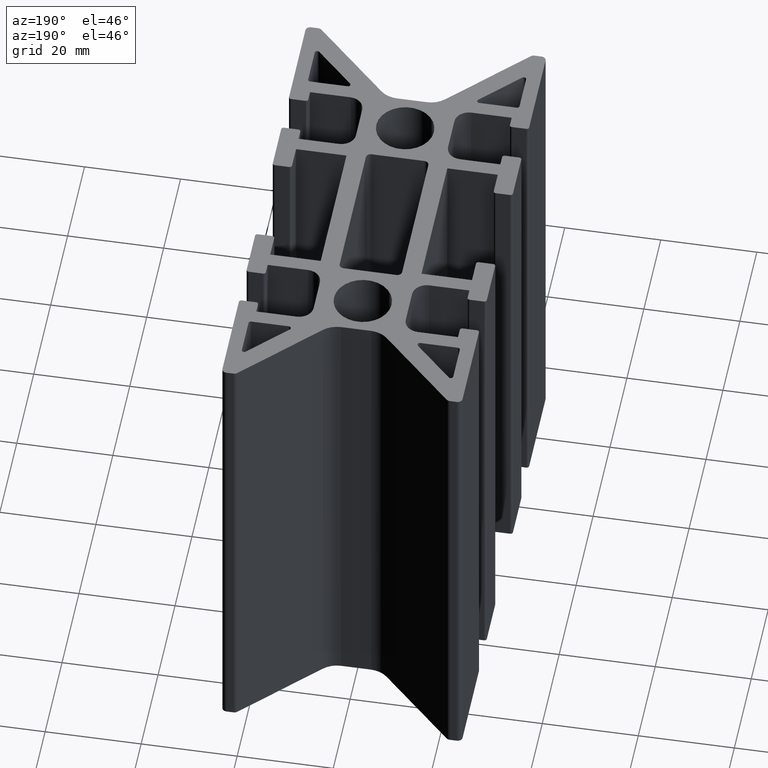
[diagram: clean part render]
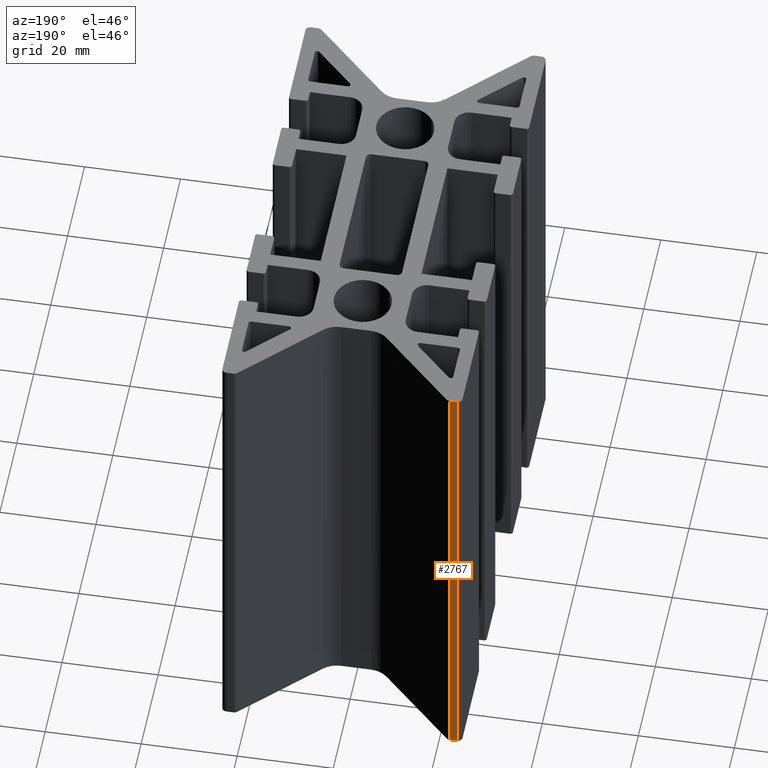
[diagram: same view with one face highlighted and labeled with its STEP entity id]
A machine part, auxiliary view. The second image highlights one B-rep face of the part: STEP entity #2767.
In plain terms, the highlighted planar face has unit normal (0, 1, 0).
Its self-contained STEP definition (entity closure, byte-faithful):
#78=PLANE('',#3012);
#197=FACE_OUTER_BOUND('',#346,.T.);
#346=EDGE_LOOP('',(#2275,#2276,#2277,#2278));
#624=LINE('',#4217,#912);
#736=LINE('',#4528,#1024);
#737=LINE('',#4531,#1025);
#738=LINE('',#4532,#1026);
#912=VECTOR('',#3370,1.49873128854783);
#1024=VECTOR('',#3676,100.);
#1025=VECTOR('',#3679,1.49873128854783);
#1026=VECTOR('',#3680,100.);
#1227=VERTEX_POINT('',#4214);
#1228=VERTEX_POINT('',#4216);
#1330=VERTEX_POINT('',#4526);
#1331=VERTEX_POINT('',#4530);
#1535=EDGE_CURVE('',#1227,#1228,#624,.T.);
#1691=EDGE_CURVE('',#1227,#1330,#736,.T.);
#1692=EDGE_CURVE('',#1331,#1330,#737,.T.);
#1693=EDGE_CURVE('',#1228,#1331,#738,.T.);
#2275=ORIENTED_EDGE('',*,*,#1691,.T.);
#2276=ORIENTED_EDGE('',*,*,#1692,.F.);
#2277=ORIENTED_EDGE('',*,*,#1693,.F.);
#2278=ORIENTED_EDGE('',*,*,#1535,.F.);
#2767=ADVANCED_FACE('',(#197),#78,.T.);
#3012=AXIS2_PLACEMENT_3D('',#4529,#3677,#3678);
#3370=DIRECTION('',(1.,0.,0.));
#3676=DIRECTION('',(0.,0.,1.));
#3677=DIRECTION('center_axis',(0.,1.,0.));
#3678=DIRECTION('ref_axis',(-1.,0.,0.));
#3679=DIRECTION('',(-1.,0.,0.));
#3680=DIRECTION('',(0.,0.,1.));
#4214=CARTESIAN_POINT('',(-24.0000000000002,49.9999999999999,-50.));
#4216=CARTESIAN_POINT('',(-22.5012687114524,49.9999999999999,-50.));
#4217=CARTESIAN_POINT('',(-22.5012687114523,49.9999999999999,-50.));
#4526=CARTESIAN_POINT('',(-24.0000000000002,49.9999999999999,50.));
#4528=CARTESIAN_POINT('',(-24.0000000000002,49.9999999999999,0.));
#4529=CARTESIAN_POINT('Origin',(-22.5012687114523,49.9999999999999,0.));
#4530=CARTESIAN_POINT('',(-22.5012687114524,49.9999999999999,50.));
#4531=CARTESIAN_POINT('',(-22.5012687114523,49.9999999999999,50.));
#4532=CARTESIAN_POINT('',(-22.5012687114523,49.9999999999999,0.));